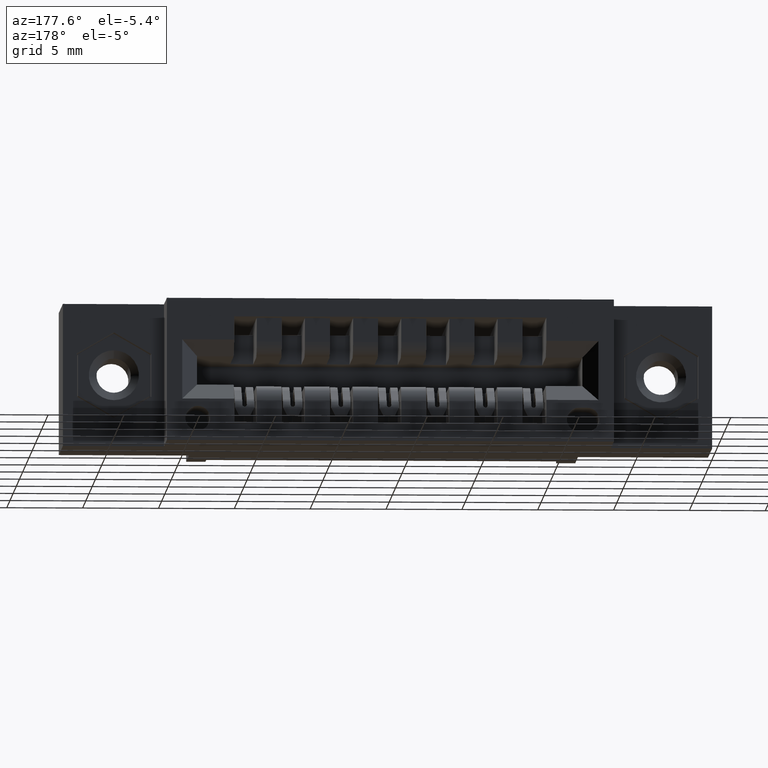
[diagram: clean part render]
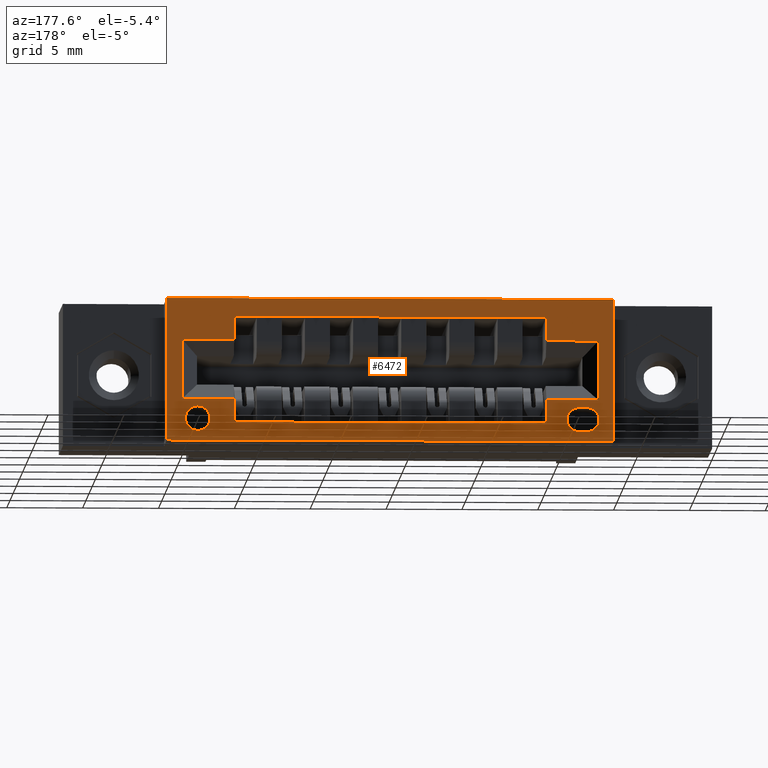
[diagram: same view with one face highlighted and labeled with its STEP entity id]
A machine part, auxiliary view. The second image highlights one B-rep face of the part: STEP entity #6472.
In plain terms, the highlighted planar face has unit normal (0, -1, 0).
Its self-contained STEP definition (entity closure, byte-faithful):
#59 = DIRECTION ( 'NONE',  ( 0.0000000000000000000, 0.0000000000000000000, 1.000000000000000000 ) ) ;
#107 = EDGE_CURVE ( 'NONE', #478, #9872, #8879, .T. ) ;
#169 = VECTOR ( 'NONE', #1574, 39.37007874015748143 ) ;
#235 = PLANE ( 'NONE',  #8852 ) ;
#255 = VERTEX_POINT ( 'NONE', #8297 ) ;
#387 = DIRECTION ( 'NONE',  ( 1.000000000000000000, 0.0000000000000000000, 0.0000000000000000000 ) ) ;
#434 = CARTESIAN_POINT ( 'NONE',  ( 1.422499999999999876, 0.5999999999999999778, -0.3699999999999998845 ) ) ;
#446 = EDGE_CURVE ( 'NONE', #255, #4840, #6210, .T. ) ;
#478 = VERTEX_POINT ( 'NONE', #9606 ) ;
#547 = LINE ( 'NONE', #4518, #5210 ) ;
#548 = DIRECTION ( 'NONE',  ( -1.000000000000000000, -0.0000000000000000000, -8.106373868439950759E-17 ) ) ;
#616 = CARTESIAN_POINT ( 'NONE',  ( 0.3315000000000000169, 0.5999999999999999778, -0.3440000000000000835 ) ) ;
#662 = CARTESIAN_POINT ( 'NONE',  ( 0.2625000000000000111, 0.5999999999999999778, -0.3700000000000001621 ) ) ;
#707 = VECTOR ( 'NONE', #6419, 39.37007874015748143 ) ;
#715 = DIRECTION ( 'NONE',  ( -0.0000000000000000000, -0.0000000000000000000, 1.000000000000000000 ) ) ;
#770 = CARTESIAN_POINT ( 'NONE',  ( 1.422499999999999876, 0.5999999999999999778, 0.0000000000000000000 ) ) ;
#785 = CARTESIAN_POINT ( 'NONE',  ( 0.0000000000000000000, 0.5999999999999999778, -0.1079999999999999433 ) ) ;
#812 = EDGE_CURVE ( 'NONE', #5258, #4918, #547, .T. ) ;
#854 = ORIENTED_EDGE ( 'NONE', *, *, #8562, .T. ) ;
#987 = CARTESIAN_POINT ( 'NONE',  ( 1.247500000000000053, 0.5999999999999999778, -0.3224999999999997868 ) ) ;
#992 = CARTESIAN_POINT ( 'NONE',  ( 0.3534999999999999254, 0.5999999999999999778, -0.3440000000000001945 ) ) ;
#1025 = VERTEX_POINT ( 'NONE', #1118 ) ;
#1076 = VECTOR ( 'NONE', #1846, 39.37007874015748143 ) ;
#1118 = CARTESIAN_POINT ( 'NONE',  ( 0.3315000000000000169, 0.5999999999999999778, -0.2820000000000000839 ) ) ;
#1139 = DIRECTION ( 'NONE',  ( 0.0000000000000000000, -2.483498176058424693E-16, 1.000000000000000000 ) ) ;
#1155 = DIRECTION ( 'NONE',  ( 0.0000000000000000000, 0.0000000000000000000, 1.000000000000000000 ) ) ;
#1247 = CARTESIAN_POINT ( 'NONE',  ( 0.4375000000000000555, 0.5999999999999999778, -0.3224999999999998423 ) ) ;
#1274 = LINE ( 'NONE', #7683, #3916 ) ;
#1391 = CIRCLE ( 'NONE', #9234, 0.03200000000000033373 ) ;
#1449 = EDGE_CURVE ( 'NONE', #5370, #7324, #2545, .T. ) ;
#1450 = DIRECTION ( 'NONE',  ( 0.0000000000000000000, -2.483498176058424693E-16, 1.000000000000000000 ) ) ;
#1470 = AXIS2_PLACEMENT_3D ( 'NONE', #8994, #3454, #59 ) ;
#1568 = VECTOR ( 'NONE', #1139, 39.37007874015748143 ) ;
#1574 = DIRECTION ( 'NONE',  ( -1.000000000000000000, 0.0000000000000000000, 0.0000000000000000000 ) ) ;
#1674 = VECTOR ( 'NONE', #3457, 39.37007874015748143 ) ;
#1683 = AXIS2_PLACEMENT_3D ( 'NONE', #4645, #2252, #4750 ) ;
#1706 = FACE_BOUND ( 'NONE', #4152, .T. ) ;
#1757 = CARTESIAN_POINT ( 'NONE',  ( 0.4375000000000000555, 0.5999999999999999778, -0.3224999999999998423 ) ) ;
#1829 = VERTEX_POINT ( 'NONE', #9092 ) ;
#1846 = DIRECTION ( 'NONE',  ( 1.000000000000000000, 0.0000000000000000000, 0.0000000000000000000 ) ) ;
#1871 = CARTESIAN_POINT ( 'NONE',  ( 0.0000000000000000000, 0.5999999999999999778, -0.3700000000000001621 ) ) ;
#1898 = LINE ( 'NONE', #8349, #1076 ) ;
#2036 = EDGE_LOOP ( 'NONE', ( #6061, #7414 ) ) ;
#2195 = ORIENTED_EDGE ( 'NONE', *, *, #8827, .F. ) ;
#2252 = DIRECTION ( 'NONE',  ( 0.0000000000000000000, 1.000000000000000000, 0.0000000000000000000 ) ) ;
#2315 = ORIENTED_EDGE ( 'NONE', *, *, #446, .F. ) ;
#2351 = VERTEX_POINT ( 'NONE', #616 ) ;
#2392 = ORIENTED_EDGE ( 'NONE', *, *, #9128, .T. ) ;
#2482 = CARTESIAN_POINT ( 'NONE',  ( 0.3024999999999999356, 0.5999999999999999778, -0.2620000000000001772 ) ) ;
#2545 = LINE ( 'NONE', #6751, #4681 ) ;
#2568 = EDGE_CURVE ( 'NONE', #5644, #10259, #8070, .T. ) ;
#2603 = DIRECTION ( 'NONE',  ( 0.0000000000000000000, 1.000000000000000000, 0.0000000000000000000 ) ) ;
#2652 = CARTESIAN_POINT ( 'NONE',  ( 1.342500000000000027, 0.5999999999999999778, -0.2809999999999996945 ) ) ;
#2729 = FACE_BOUND ( 'NONE', #2036, .T. ) ;
#2887 = CARTESIAN_POINT ( 'NONE',  ( 0.0000000000000000000, 0.5999999999999999778, -0.3700000000000001621 ) ) ;
#3054 = CARTESIAN_POINT ( 'NONE',  ( 0.4375000000000000555, 0.5999999999999999778, -0.2620000000000001772 ) ) ;
#3103 = EDGE_CURVE ( 'NONE', #1025, #4212, #4305, .T. ) ;
#3187 = CIRCLE ( 'NONE', #5902, 0.03099999999999998937 ) ;
#3366 = FACE_BOUND ( 'NONE', #7146, .T. ) ;
#3454 = DIRECTION ( 'NONE',  ( 0.0000000000000000000, 1.000000000000000000, 0.0000000000000000000 ) ) ;
#3457 = DIRECTION ( 'NONE',  ( 1.000000000000000000, 0.0000000000000000000, 3.104372720073036980E-15 ) ) ;
#3571 = VERTEX_POINT ( 'NONE', #2652 ) ;
#3583 = LINE ( 'NONE', #5813, #5346 ) ;
#3638 = LINE ( 'NONE', #1247, #10014 ) ;
#3667 = VERTEX_POINT ( 'NONE', #9559 ) ;
#3815 = CARTESIAN_POINT ( 'NONE',  ( 0.3534999999999999254, 0.5999999999999999778, -0.2819999999999999729 ) ) ;
#3824 = ORIENTED_EDGE ( 'NONE', *, *, #8679, .T. ) ;
#3826 = EDGE_CURVE ( 'NONE', #9872, #7352, #10506, .T. ) ;
#3846 = CARTESIAN_POINT ( 'NONE',  ( 1.342500000000000027, 0.5999999999999999778, -0.3130000000000000560 ) ) ;
#3916 = VECTOR ( 'NONE', #387, 39.37007874015748143 ) ;
#4005 = ORIENTED_EDGE ( 'NONE', *, *, #1449, .F. ) ;
#4024 = VECTOR ( 'NONE', #10425, 39.37007874015748143 ) ;
#4025 = DIRECTION ( 'NONE',  ( -1.000000000000000000, -0.0000000000000000000, 6.208745440146073961E-15 ) ) ;
#4054 = CARTESIAN_POINT ( 'NONE',  ( 0.4375000000000000555, 0.5999999999999998668, -0.04750000000000024342 ) ) ;
#4132 = ORIENTED_EDGE ( 'NONE', *, *, #7557, .F. ) ;
#4135 = VERTEX_POINT ( 'NONE', #4185 ) ;
#4152 = EDGE_LOOP ( 'NONE', ( #2195, #8006, #6169, #4349, #8251, #5532, #2392, #4287, #8457, #5423, #854, #4005 ) ) ;
#4185 = CARTESIAN_POINT ( 'NONE',  ( 1.247500000000000053, 0.5999999999999998668, -0.1079999999999999433 ) ) ;
#4212 = VERTEX_POINT ( 'NONE', #3815 ) ;
#4287 = ORIENTED_EDGE ( 'NONE', *, *, #812, .T. ) ;
#4305 = LINE ( 'NONE', #5064, #1674 ) ;
#4317 = EDGE_CURVE ( 'NONE', #4918, #7700, #4447, .T. ) ;
#4349 = ORIENTED_EDGE ( 'NONE', *, *, #6594, .T. ) ;
#4396 = EDGE_CURVE ( 'NONE', #7320, #2351, #7108, .T. ) ;
#4447 = LINE ( 'NONE', #5266, #7879 ) ;
#4505 = LINE ( 'NONE', #7838, #8199 ) ;
#4518 = CARTESIAN_POINT ( 'NONE',  ( 0.0000000000000000000, 0.5999999999999999778, -0.2620000000000001772 ) ) ;
#4645 = CARTESIAN_POINT ( 'NONE',  ( 0.3534999999999999254, 0.5999999999999999778, -0.3130000000000000560 ) ) ;
#4681 = VECTOR ( 'NONE', #5774, 39.37007874015748143 ) ;
#4750 = DIRECTION ( 'NONE',  ( 0.0000000000000000000, 0.0000000000000000000, 1.000000000000000000 ) ) ;
#4840 = VERTEX_POINT ( 'NONE', #662 ) ;
#4859 = CARTESIAN_POINT ( 'NONE',  ( 1.382500000000000062, 0.5999999999999999778, -0.2620000000000001772 ) ) ;
#4918 = VERTEX_POINT ( 'NONE', #4859 ) ;
#5005 = CARTESIAN_POINT ( 'NONE',  ( 0.3315000000000000724, 0.5999999999999999778, -0.3130000000000000560 ) ) ;
#5064 = CARTESIAN_POINT ( 'NONE',  ( 0.3315000000000000169, 0.5999999999999999778, -0.2820000000000000839 ) ) ;
#5210 = VECTOR ( 'NONE', #8524, 39.37007874015748143 ) ;
#5252 = VERTEX_POINT ( 'NONE', #3054 ) ;
#5258 = VERTEX_POINT ( 'NONE', #7900 ) ;
#5266 = CARTESIAN_POINT ( 'NONE',  ( 1.382500000000000062, 0.5999999999999999778, -0.3700000000000001621 ) ) ;
#5329 = VERTEX_POINT ( 'NONE', #1757 ) ;
#5346 = VECTOR ( 'NONE', #5870, 39.37007874015748143 ) ;
#5370 = VERTEX_POINT ( 'NONE', #4054 ) ;
#5414 = CARTESIAN_POINT ( 'NONE',  ( 0.2625000000000000111, 0.5999999999999999778, 0.0000000000000000000 ) ) ;
#5423 = ORIENTED_EDGE ( 'NONE', *, *, #9095, .T. ) ;
#5532 = ORIENTED_EDGE ( 'NONE', *, *, #7536, .T. ) ;
#5644 = VERTEX_POINT ( 'NONE', #434 ) ;
#5657 = VECTOR ( 'NONE', #1450, 39.37007874015748143 ) ;
#5774 = DIRECTION ( 'NONE',  ( 1.000000000000000000, -0.0000000000000000000, -0.0000000000000000000 ) ) ;
#5776 = EDGE_CURVE ( 'NONE', #5329, #5252, #4505, .T. ) ;
#5813 = CARTESIAN_POINT ( 'NONE',  ( 0.0000000000000000000, 0.5999999999999999778, -0.1079999999999999433 ) ) ;
#5870 = DIRECTION ( 'NONE',  ( -1.000000000000000000, 0.0000000000000000000, 0.0000000000000000000 ) ) ;
#5902 = AXIS2_PLACEMENT_3D ( 'NONE', #5005, #2603, #9108 ) ;
#6015 = ORIENTED_EDGE ( 'NONE', *, *, #3103, .F. ) ;
#6061 = ORIENTED_EDGE ( 'NONE', *, *, #6860, .F. ) ;
#6065 = CIRCLE ( 'NONE', #1470, 0.03200000000000033373 ) ;
#6169 = ORIENTED_EDGE ( 'NONE', *, *, #3826, .T. ) ;
#6174 = EDGE_CURVE ( 'NONE', #1829, #3571, #1391, .T. ) ;
#6210 = LINE ( 'NONE', #5414, #7307 ) ;
#6284 = CIRCLE ( 'NONE', #1683, 0.03100000000000009345 ) ;
#6344 = LINE ( 'NONE', #6454, #4024 ) ;
#6367 = CARTESIAN_POINT ( 'NONE',  ( 0.3024999999999999356, 0.5999999999999999778, -0.3700000000000001621 ) ) ;
#6419 = DIRECTION ( 'NONE',  ( 0.0000000000000000000, 0.0000000000000000000, -1.000000000000000000 ) ) ;
#6454 = CARTESIAN_POINT ( 'NONE',  ( 1.247500000000000053, 0.5999999999999999778, -0.3224999999999997868 ) ) ;
#6472 = ADVANCED_FACE ( 'NONE', ( #2729, #3366, #9958, #1706 ), #235, .F. ) ;
#6594 = EDGE_CURVE ( 'NONE', #7352, #5252, #1274, .T. ) ;
#6618 = DIRECTION ( 'NONE',  ( 0.0000000000000000000, -0.0000000000000000000, -1.000000000000000000 ) ) ;
#6721 = DIRECTION ( 'NONE',  ( 0.0000000000000000000, -1.000000000000000000, 0.0000000000000000000 ) ) ;
#6751 = CARTESIAN_POINT ( 'NONE',  ( 0.4375000000000000555, 0.5999999999999998668, -0.04750000000000024342 ) ) ;
#6855 = EDGE_CURVE ( 'NONE', #2351, #1025, #3187, .T. ) ;
#6860 = EDGE_CURVE ( 'NONE', #3571, #1829, #6065, .T. ) ;
#6982 = LINE ( 'NONE', #2887, #7097 ) ;
#7097 = VECTOR ( 'NONE', #548, 39.37007874015748143 ) ;
#7107 = DIRECTION ( 'NONE',  ( 0.0000000000000000000, 0.0000000000000000000, -1.000000000000000000 ) ) ;
#7108 = LINE ( 'NONE', #9562, #8035 ) ;
#7146 = EDGE_LOOP ( 'NONE', ( #6015, #10123, #9613, #4132 ) ) ;
#7251 = ORIENTED_EDGE ( 'NONE', *, *, #2568, .F. ) ;
#7305 = DIRECTION ( 'NONE',  ( 0.0000000000000000000, 0.0000000000000000000, 1.000000000000000000 ) ) ;
#7307 = VECTOR ( 'NONE', #7107, 39.37007874015748143 ) ;
#7320 = VERTEX_POINT ( 'NONE', #992 ) ;
#7324 = VERTEX_POINT ( 'NONE', #8138 ) ;
#7352 = VERTEX_POINT ( 'NONE', #2482 ) ;
#7414 = ORIENTED_EDGE ( 'NONE', *, *, #6174, .F. ) ;
#7536 = EDGE_CURVE ( 'NONE', #5329, #3667, #3638, .T. ) ;
#7557 = EDGE_CURVE ( 'NONE', #4212, #7320, #6284, .T. ) ;
#7594 = LINE ( 'NONE', #987, #1568 ) ;
#7683 = CARTESIAN_POINT ( 'NONE',  ( 0.0000000000000000000, 0.5999999999999999778, -0.2620000000000001772 ) ) ;
#7700 = VERTEX_POINT ( 'NONE', #8128 ) ;
#7713 = LINE ( 'NONE', #8757, #5657 ) ;
#7759 = DIRECTION ( 'NONE',  ( 1.000000000000000000, -0.0000000000000000000, -0.0000000000000000000 ) ) ;
#7838 = CARTESIAN_POINT ( 'NONE',  ( 0.4375000000000000555, 0.5999999999999999778, -0.3224999999999998423 ) ) ;
#7879 = VECTOR ( 'NONE', #1155, 39.37007874015748143 ) ;
#7887 = DIRECTION ( 'NONE',  ( 0.0000000000000000000, -2.483498176058424693E-16, 1.000000000000000000 ) ) ;
#7900 = CARTESIAN_POINT ( 'NONE',  ( 1.247500000000000053, 0.5999999999999999778, -0.2620000000000001772 ) ) ;
#8006 = ORIENTED_EDGE ( 'NONE', *, *, #107, .T. ) ;
#8035 = VECTOR ( 'NONE', #4025, 39.37007874015748143 ) ;
#8070 = LINE ( 'NONE', #770, #9326 ) ;
#8128 = CARTESIAN_POINT ( 'NONE',  ( 1.382500000000000062, 0.5999999999999999778, -0.1079999999999999433 ) ) ;
#8138 = CARTESIAN_POINT ( 'NONE',  ( 1.247500000000000053, 0.5999999999999998668, -0.04750000000000018791 ) ) ;
#8199 = VECTOR ( 'NONE', #7887, 39.37007874015748143 ) ;
#8251 = ORIENTED_EDGE ( 'NONE', *, *, #5776, .F. ) ;
#8297 = CARTESIAN_POINT ( 'NONE',  ( 0.2625000000000000111, 0.5999999999999999778, 0.0000000000000000000 ) ) ;
#8349 = CARTESIAN_POINT ( 'NONE',  ( 0.0000000000000000000, 0.5999999999999999778, 0.0000000000000000000 ) ) ;
#8457 = ORIENTED_EDGE ( 'NONE', *, *, #4317, .T. ) ;
#8524 = DIRECTION ( 'NONE',  ( 1.000000000000000000, 0.0000000000000000000, 0.0000000000000000000 ) ) ;
#8562 = EDGE_CURVE ( 'NONE', #4135, #7324, #6344, .T. ) ;
#8679 = EDGE_CURVE ( 'NONE', #255, #10259, #1898, .T. ) ;
#8757 = CARTESIAN_POINT ( 'NONE',  ( 0.4375000000000000555, 0.5999999999999999778, -0.3224999999999998423 ) ) ;
#8827 = EDGE_CURVE ( 'NONE', #478, #5370, #7713, .T. ) ;
#8852 = AXIS2_PLACEMENT_3D ( 'NONE', #1871, #6721, #6618 ) ;
#8879 = LINE ( 'NONE', #785, #169 ) ;
#8898 = CARTESIAN_POINT ( 'NONE',  ( 0.3024999999999999356, 0.5999999999999999778, -0.1079999999999999433 ) ) ;
#8994 = CARTESIAN_POINT ( 'NONE',  ( 1.342500000000000027, 0.5999999999999999778, -0.3130000000000000560 ) ) ;
#9092 = CARTESIAN_POINT ( 'NONE',  ( 1.342500000000000027, 0.5999999999999999778, -0.3450000000000004174 ) ) ;
#9095 = EDGE_CURVE ( 'NONE', #7700, #4135, #3583, .T. ) ;
#9100 = EDGE_LOOP ( 'NONE', ( #3824, #7251, #9392, #2315 ) ) ;
#9108 = DIRECTION ( 'NONE',  ( 0.0000000000000000000, 0.0000000000000000000, 1.000000000000000000 ) ) ;
#9128 = EDGE_CURVE ( 'NONE', #3667, #5258, #7594, .T. ) ;
#9234 = AXIS2_PLACEMENT_3D ( 'NONE', #3846, #10379, #7305 ) ;
#9326 = VECTOR ( 'NONE', #715, 39.37007874015748143 ) ;
#9392 = ORIENTED_EDGE ( 'NONE', *, *, #9740, .T. ) ;
#9483 = CARTESIAN_POINT ( 'NONE',  ( 1.422499999999999876, 0.5999999999999999778, 0.0000000000000000000 ) ) ;
#9559 = CARTESIAN_POINT ( 'NONE',  ( 1.247500000000000053, 0.5999999999999999778, -0.3224999999999997868 ) ) ;
#9562 = CARTESIAN_POINT ( 'NONE',  ( 0.3315000000000000169, 0.5999999999999999778, -0.3440000000000000835 ) ) ;
#9606 = CARTESIAN_POINT ( 'NONE',  ( 0.4375000000000000555, 0.5999999999999998668, -0.1079999999999999433 ) ) ;
#9613 = ORIENTED_EDGE ( 'NONE', *, *, #4396, .F. ) ;
#9740 = EDGE_CURVE ( 'NONE', #5644, #4840, #6982, .T. ) ;
#9872 = VERTEX_POINT ( 'NONE', #8898 ) ;
#9958 = FACE_OUTER_BOUND ( 'NONE', #9100, .T. ) ;
#10014 = VECTOR ( 'NONE', #7759, 39.37007874015748143 ) ;
#10123 = ORIENTED_EDGE ( 'NONE', *, *, #6855, .F. ) ;
#10259 = VERTEX_POINT ( 'NONE', #9483 ) ;
#10379 = DIRECTION ( 'NONE',  ( 0.0000000000000000000, 1.000000000000000000, 0.0000000000000000000 ) ) ;
#10425 = DIRECTION ( 'NONE',  ( 0.0000000000000000000, -2.483498176058424693E-16, 1.000000000000000000 ) ) ;
#10506 = LINE ( 'NONE', #6367, #707 ) ;